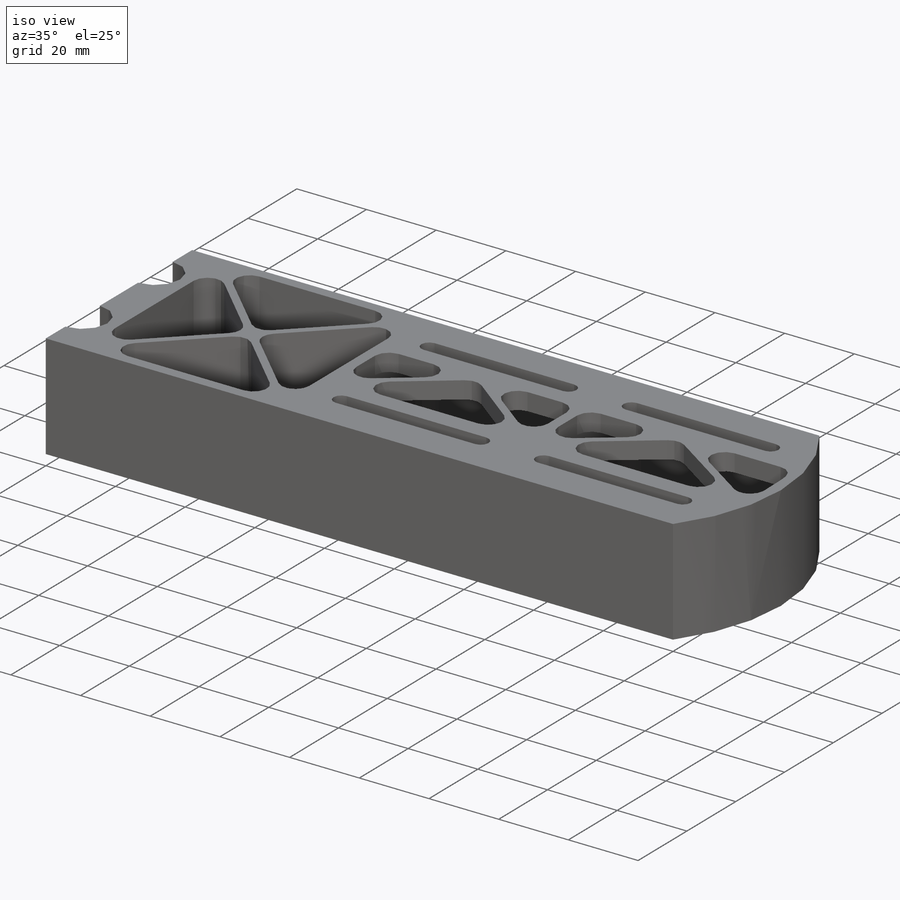
[diagram: iso view]
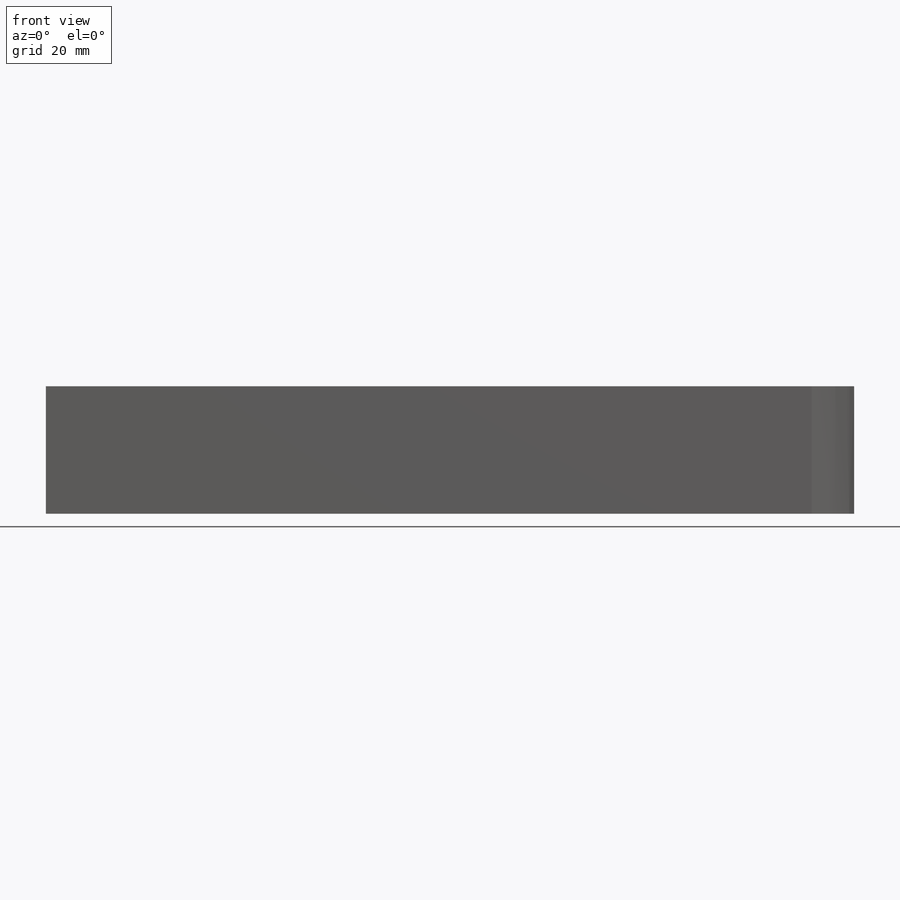
[diagram: front view]
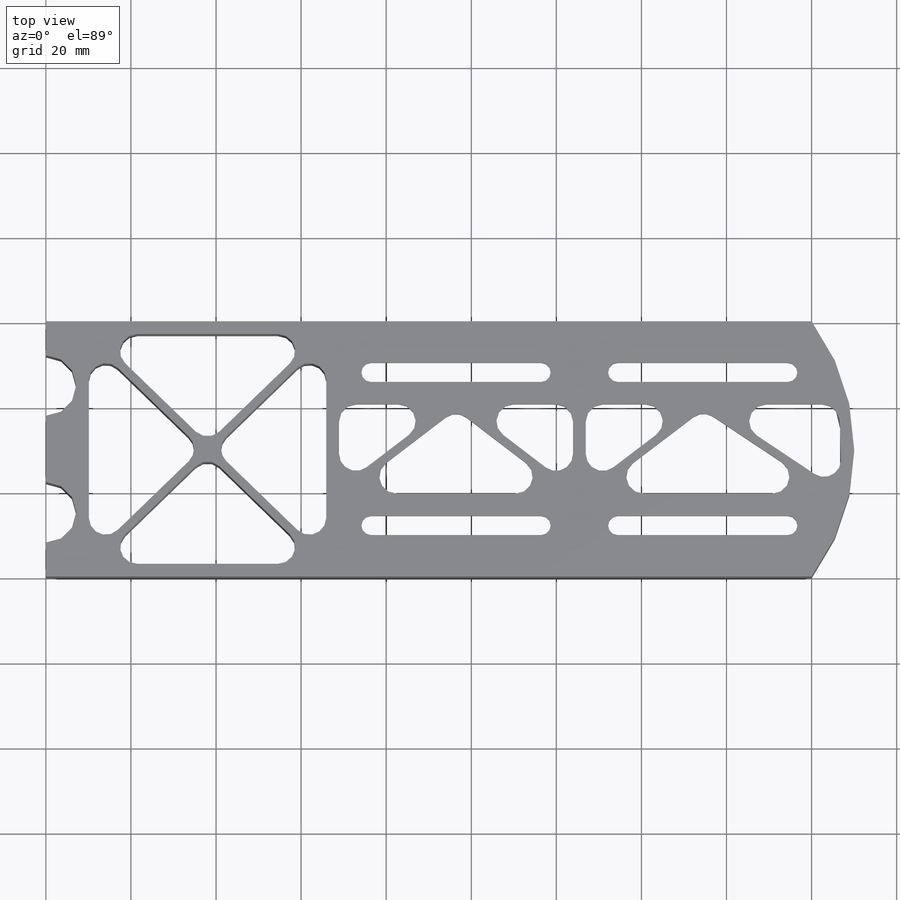
[diagram: top view]
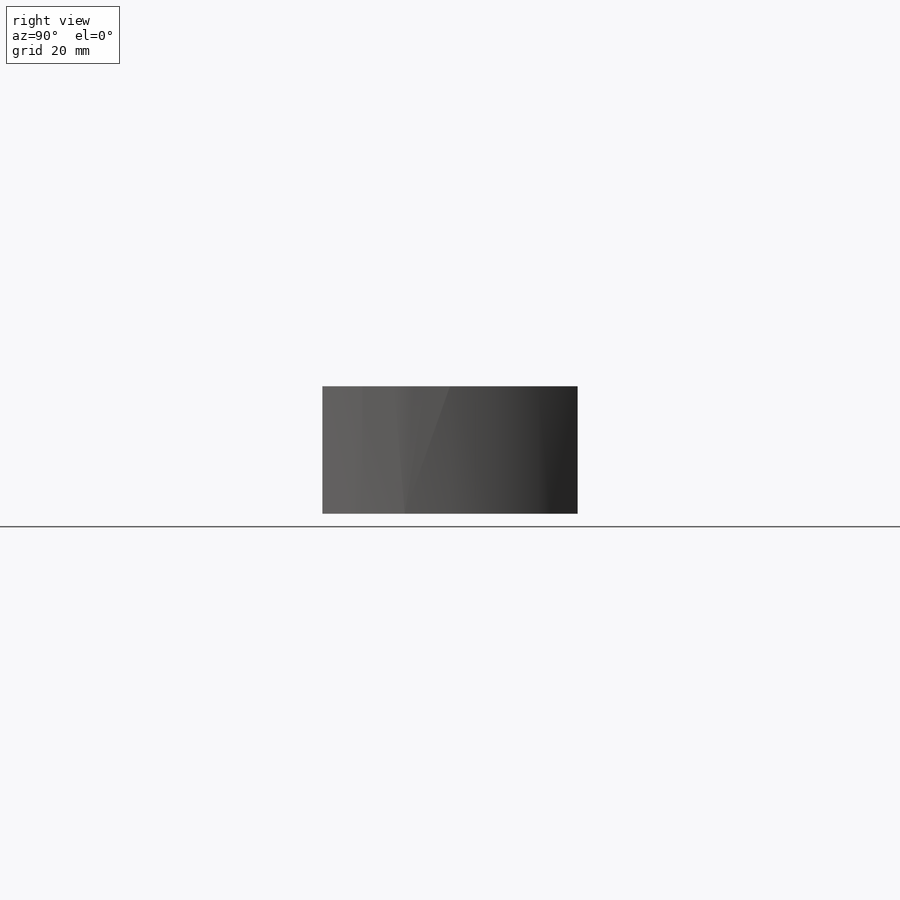
[diagram: right view]
SOLIDWORKS PART (.sldprt)
format: sldprt  version: not decoded by parser v0  size: 695,296 bytes
history: native  units: mm
features: sketch x10, extrude x9, fillet x3, material x1, cut_extrude x1 (+11 scaffold rows collapsed)
feature tree (35):
  scaffold x11  (default folders/planes/origin — collapsed)
  material  "3.1355 (EN-AW 2024)"
  sketch  "Эскиз1"  dims[c1.D2=14.2mm c1.D4=15.2mm c1.D8=50.0mm c1.D1=60.0mm c1.D3=15.1mm c2.D4=29.8mm c2.D5=140.0mm c2.D6=50.0mm c2.D7=190.0mm c3.D6=50.0mm]
  extrude  "Бобышка-Вытянуть1"  Depth=30mm
  sketch  "Эскиз2"  dims[D1=3.0mm]
  cut_extrude  "Вырез-Вытянуть1"  [1 undecoded]
  sketch  "Temp"  dims[D1=20.0mm]
  extrude  "Бобышка-Вытянуть2"  [1 undecoded]
  sketch  "Эскиз3"  dims[c1.D1=4.5mm c1.D6=4.5mm c1.D2=40.0mm c1.D3=9.0mm c1.D4=9.0mm c1.D5=9.0mm c2.D6=3.0mm c2.D7=7.5mm]
  extrude  "Бобышка-Вытянуть3"  Depth=5mm
  sketch  "Эскиз4"
  extrude  "Бобышка-Вытянуть4"  [1 undecoded]
  sketch  "Эскиз6"  dims[D1=3.0mm]
  extrude  "Бобышка-Вытянуть5"  [1 undecoded]
  sketch  "Эскиз7"  dims[D1=1.0mm D2=1.0mm]
  extrude  "Бобышка-Вытянуть6"  [1 undecoded]
  sketch  "Эскиз9"  dims[D1=1.5mm D2=1.5mm]
  extrude  "Бобышка-Вытянуть8"  [1 undecoded]
  sketch  "Эскиз8"  dims[c1.D1=1.0mm c1.D2=1.0mm c2.D1=1.0mm c2.D2=1.0mm]
  extrude  "Бобышка-Вытянуть7"  [1 undecoded]
  fillet  "Скругление1"  Radius=4mm
  fillet  "Скругление2"  Radius=4mm
  fillet  "Скругление3"  Radius=4mm
  sketch  "Эскиз10"  dims[D1=2.25mm D2=2.25mm D3=2.25mm D4=2.25mm]
  extrude  "Бобышка-Вытянуть9"  [1 undecoded]
decode coverage: 14 of 23 modeling features carry decoded parameters
note: 8 parameter values undecoded
summary: no parameter record found for 8 features
note: suppression state not decoded; provenance and decode notes live in map.json
